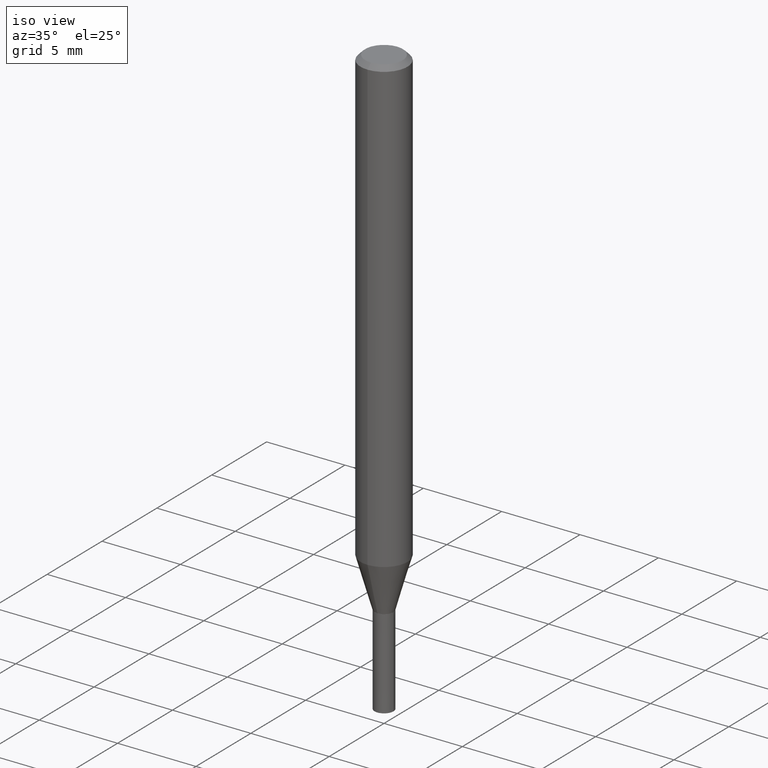
[diagram: clean part render]
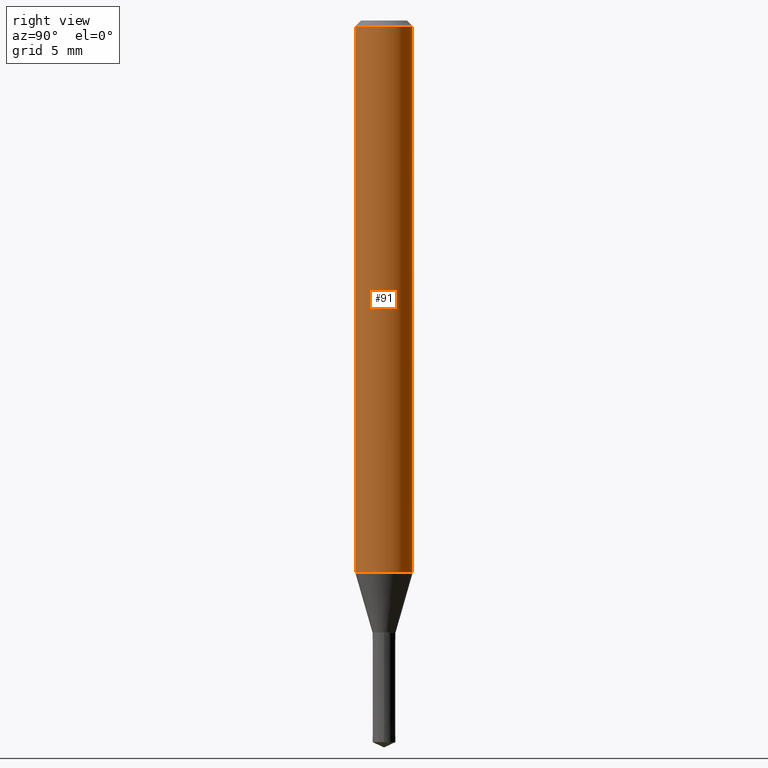
[diagram: tour spotlight — one face highlighted and labeled with its STEP entity id]
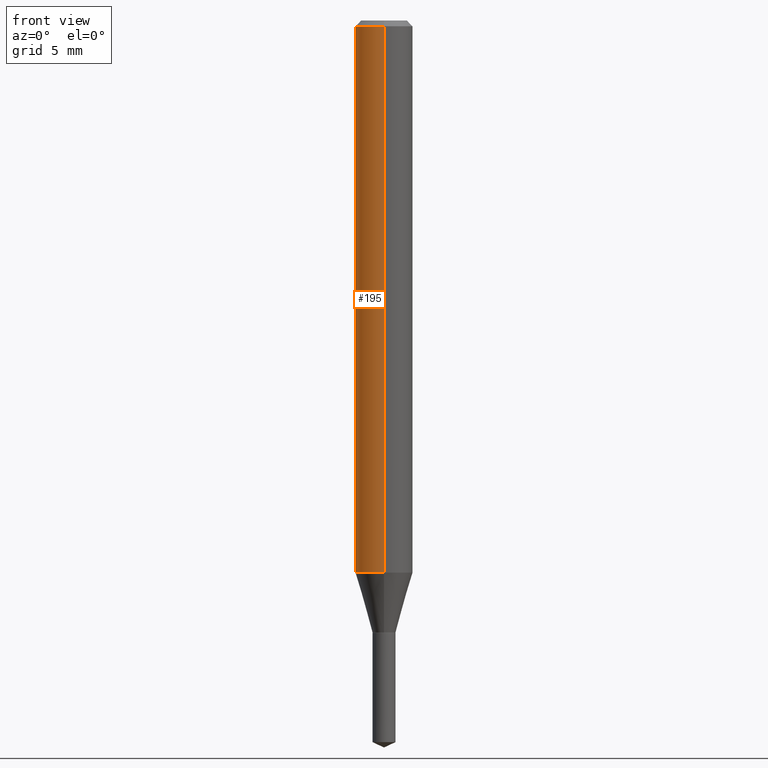
[diagram: tour spotlight — one face highlighted and labeled with its STEP entity id]
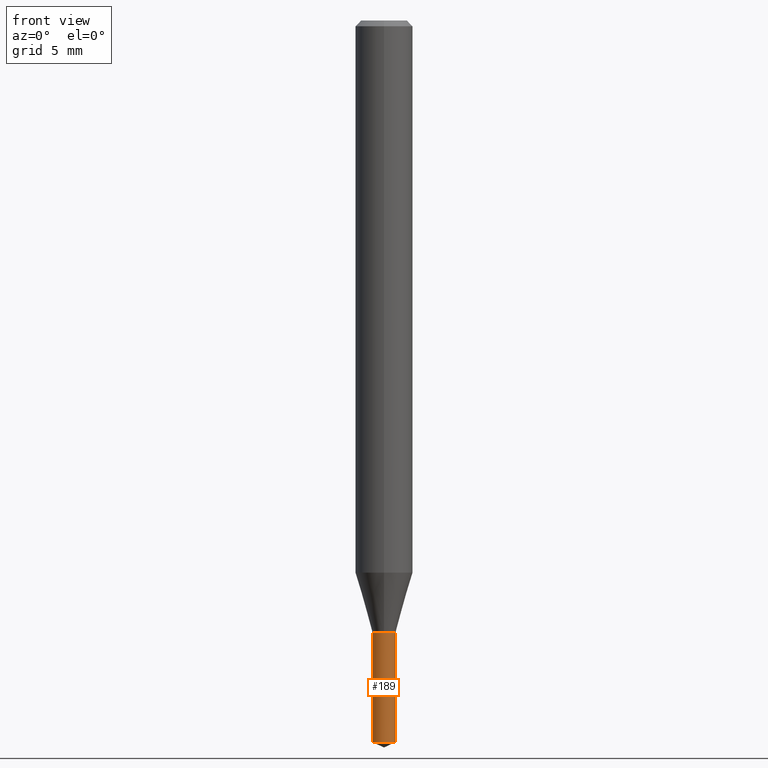
[diagram: tour spotlight — one face highlighted and labeled with its STEP entity id]
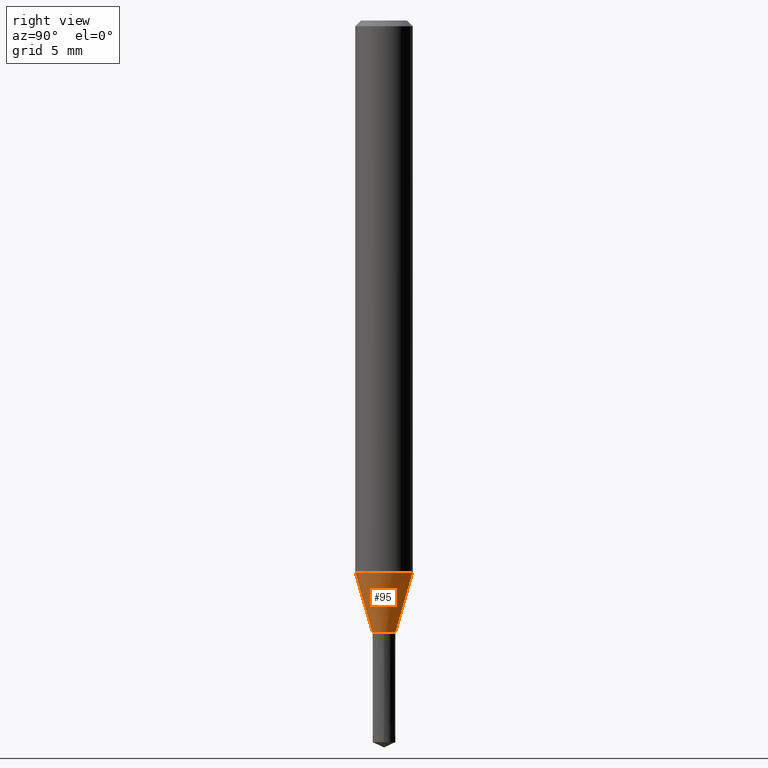
[diagram: tour spotlight — one face highlighted and labeled with its STEP entity id]
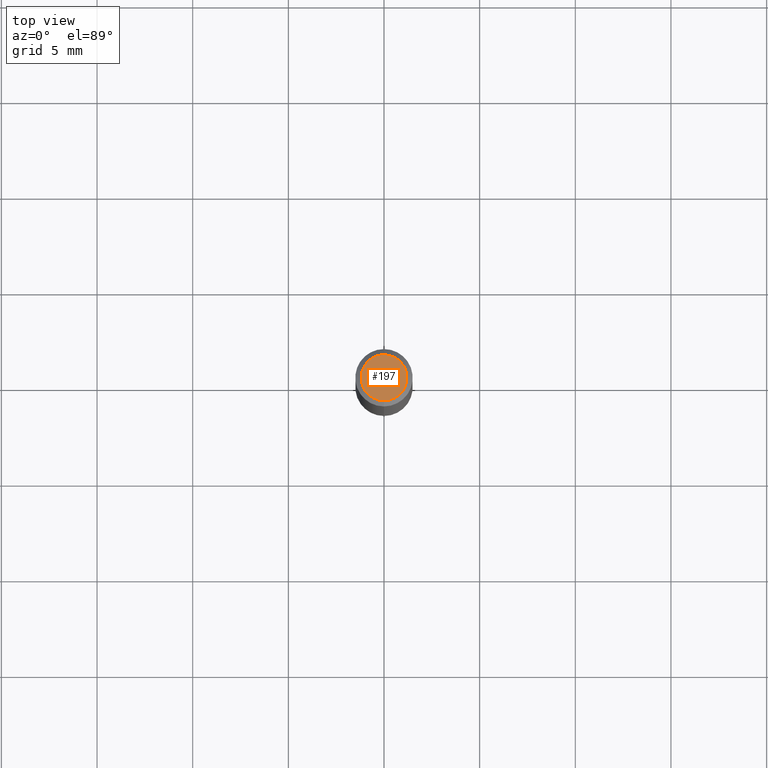
[diagram: tour spotlight — one face highlighted and labeled with its STEP entity id]
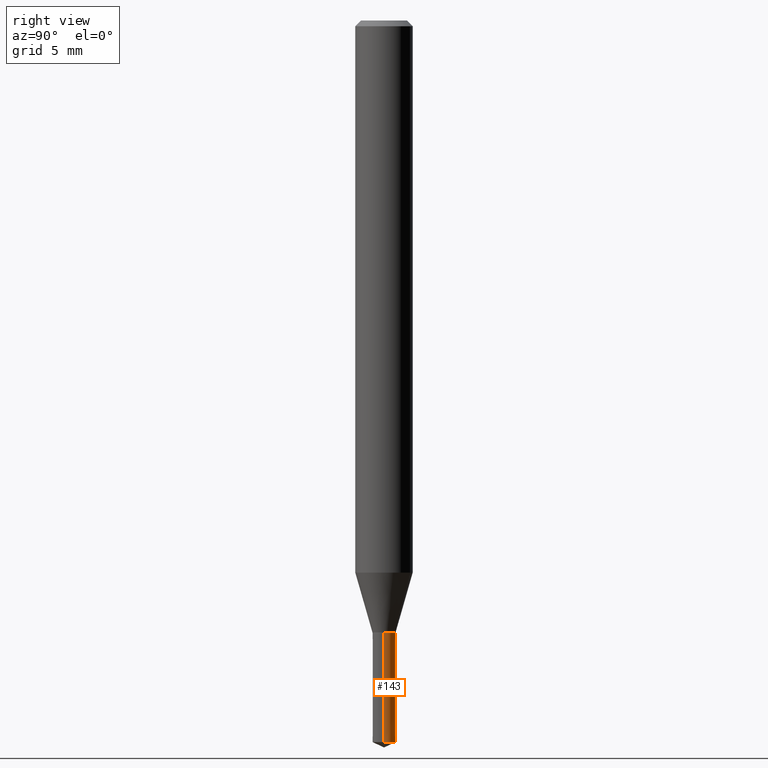
[diagram: tour spotlight — one face highlighted and labeled with its STEP entity id]
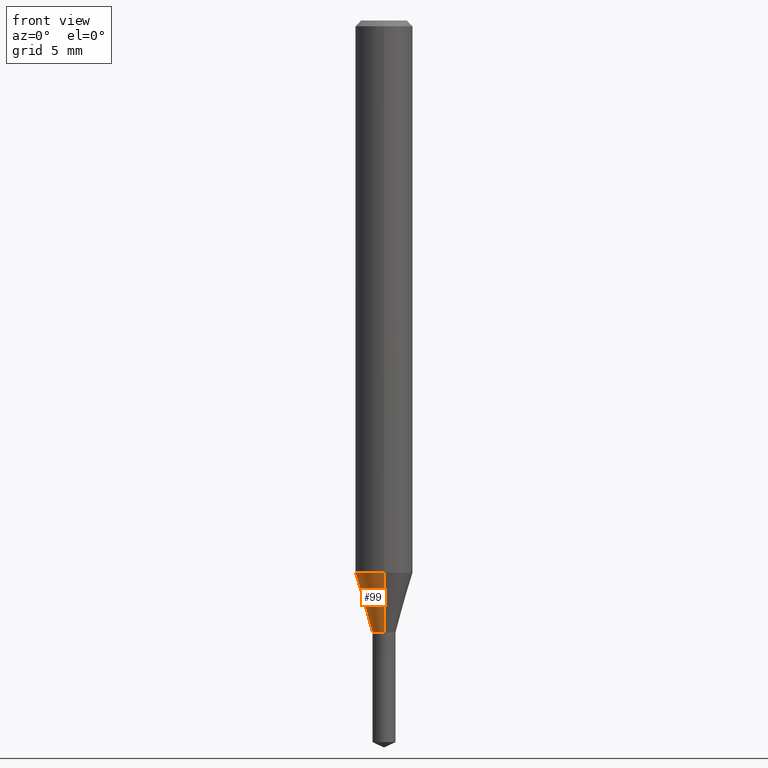
[diagram: tour spotlight — one face highlighted and labeled with its STEP entity id]
A machine part: a face-by-face anatomy tour. The part has 15 B-rep faces; the first image is the clean iso view, then the 7 largest visible faces are spotlighted one at a time (largest first), each with its STEP entity span.

Face 1 — right view, entity #91. In plain terms, the highlighted cylindrical surface (edge-blend (fillet) strip) has radius 1.5 mm, axis along (-0, -0, 1).
Definition (entity closure, byte-faithful):
#91=ADVANCED_FACE('',(#226),#227,.T.);
#103=EDGE_CURVE('',#187,#193,#242,.T.);
#111=EDGE_CURVE('',#173,#199,#251,.T.);
#131=EDGE_CURVE('',#193,#199,#273,.T.);
#151=EDGE_CURVE('',#173,#187,#297,.T.);
#173=VERTEX_POINT('',#320);
#187=VERTEX_POINT('',#334);
#193=VERTEX_POINT('',#341);
#199=VERTEX_POINT('',#349);
#226=FACE_OUTER_BOUND('',#368,.T.);
#227=CYLINDRICAL_SURFACE('',#369,1.5);
#242=CIRCLE('',#388,1.5);
#251=CIRCLE('',#402,1.5);
#273=LINE('',#426,#427);
#297=LINE('',#457,#458);
#320=CARTESIAN_POINT('',(0.0,1.5,-0.300000000000001));
#334=CARTESIAN_POINT('',(0.0,1.5,-28.861));
#341=CARTESIAN_POINT('',(1.83690953073357E-016,-1.5,-28.861));
#349=CARTESIAN_POINT('',(1.83690953073357E-016,-1.5,-0.300000000000001));
#368=EDGE_LOOP('',(#536,#537,#538,#539));
#369=AXIS2_PLACEMENT_3D('',#540,#541,#542);
#388=AXIS2_PLACEMENT_3D('',#570,#571,#572);
#402=AXIS2_PLACEMENT_3D('',#583,#584,#585);
#426=CARTESIAN_POINT('',(1.83690953073357E-016,-1.5,-14.5805));
#427=VECTOR('',#605,1.0);
#457=CARTESIAN_POINT('',(-1.83690953073357E-016,1.5,-14.5805));
#458=VECTOR('',#643,1.0);
#536=ORIENTED_EDGE('',*,*,#151,.F.);
#537=ORIENTED_EDGE('',*,*,#111,.T.);
#538=ORIENTED_EDGE('',*,*,#131,.F.);
#539=ORIENTED_EDGE('',*,*,#103,.F.);
#540=CARTESIAN_POINT('',(0.0,0.0,-14.5805));
#541=DIRECTION('',(-0.0,-0.0,1.0));
#542=DIRECTION('',(0.0,1.0,0.0));
#570=CARTESIAN_POINT('',(0.0,0.0,-28.861));
#571=DIRECTION('',(0.0,0.0,-1.0));
#572=DIRECTION('',(0.0,1.0,0.0));
#583=CARTESIAN_POINT('',(0.0,0.0,-0.300000000000001));
#584=DIRECTION('',(0.0,0.0,-1.0));
#585=DIRECTION('',(0.0,1.0,0.0));
#605=DIRECTION('',(-0.0,-0.0,1.0));
#643=DIRECTION('',(0.0,0.0,-1.0));

Face 2 — front view, entity #195. In plain terms, the highlighted cylindrical surface (edge-blend (fillet) strip) has radius 1.5 mm, axis along (-0, -0, 1).
Definition (entity closure, byte-faithful):
#101=EDGE_CURVE('',#193,#187,#240,.T.);
#131=EDGE_CURVE('',#193,#199,#273,.T.);
#151=EDGE_CURVE('',#173,#187,#297,.T.);
#173=VERTEX_POINT('',#320);
#181=EDGE_CURVE('',#199,#173,#328,.T.);
#187=VERTEX_POINT('',#334);
#193=VERTEX_POINT('',#341);
#195=ADVANCED_FACE('',(#343),#344,.T.);
#199=VERTEX_POINT('',#349);
#240=CIRCLE('',#385,1.5);
#273=LINE('',#426,#427);
#297=LINE('',#457,#458);
#320=CARTESIAN_POINT('',(0.0,1.5,-0.300000000000001));
#328=CIRCLE('',#501,1.5);
#334=CARTESIAN_POINT('',(0.0,1.5,-28.861));
#341=CARTESIAN_POINT('',(1.83690953073357E-016,-1.5,-28.861));
#343=FACE_OUTER_BOUND('',#518,.T.);
#344=CYLINDRICAL_SURFACE('',#519,1.5);
#349=CARTESIAN_POINT('',(1.83690953073357E-016,-1.5,-0.300000000000001));
#385=AXIS2_PLACEMENT_3D('',#567,#568,#569);
#426=CARTESIAN_POINT('',(1.83690953073357E-016,-1.5,-14.5805));
#427=VECTOR('',#605,1.0);
#457=CARTESIAN_POINT('',(-1.83690953073357E-016,1.5,-14.5805));
#458=VECTOR('',#643,1.0);
#501=AXIS2_PLACEMENT_3D('',#669,#670,#671);
#518=EDGE_LOOP('',(#686,#687,#688,#689));
#519=AXIS2_PLACEMENT_3D('',#690,#691,#692);
#567=CARTESIAN_POINT('',(0.0,0.0,-28.861));
#568=DIRECTION('',(0.0,0.0,-1.0));
#569=DIRECTION('',(0.0,1.0,0.0));
#605=DIRECTION('',(-0.0,-0.0,1.0));
#643=DIRECTION('',(0.0,0.0,-1.0));
#669=CARTESIAN_POINT('',(0.0,0.0,-0.300000000000001));
#670=DIRECTION('',(0.0,0.0,-1.0));
#671=DIRECTION('',(0.0,1.0,0.0));
#686=ORIENTED_EDGE('',*,*,#151,.T.);
#687=ORIENTED_EDGE('',*,*,#101,.F.);
#688=ORIENTED_EDGE('',*,*,#131,.T.);
#689=ORIENTED_EDGE('',*,*,#181,.T.);
#690=CARTESIAN_POINT('',(0.0,0.0,-14.5805));
#691=DIRECTION('',(-0.0,-0.0,1.0));
#692=DIRECTION('',(0.0,1.0,0.0));

Face 3 — front view, entity #189. In plain terms, the highlighted conical surface has half-angle 0.01 deg.
Definition (entity closure, byte-faithful):
#93=EDGE_CURVE('',#117,#113,#229,.T.);
#105=EDGE_CURVE('',#115,#119,#244,.T.);
#113=VERTEX_POINT('',#253);
#115=VERTEX_POINT('',#255);
#117=VERTEX_POINT('',#257);
#119=VERTEX_POINT('',#259);
#153=EDGE_CURVE('',#119,#117,#299,.T.);
#189=ADVANCED_FACE('',(#336),#337,.T.);
#201=EDGE_CURVE('',#115,#113,#351,.T.);
#229=LINE('',#372,#373);
#244=LINE('',#391,#392);
#253=CARTESIAN_POINT('',(-0.6,0.0,-37.72021541));
#255=CARTESIAN_POINT('',(0.6,7.34763812293426E-017,-37.72021541));
#257=CARTESIAN_POINT('',(-0.601,0.0,-32.0));
#259=CARTESIAN_POINT('',(0.601,7.35988418647249E-017,-32.0));
#299=CIRCLE('',#461,0.601);
#336=FACE_OUTER_BOUND('',#509,.T.);
#337=CONICAL_SURFACE('',#510,0.6005,0.000174818589535044);
#351=CIRCLE('',#527,0.6);
#372=CARTESIAN_POINT('',(-0.6005,-7.35376115470338E-017,-34.860107705));
#373=VECTOR('',#543,1.0);
#391=CARTESIAN_POINT('',(0.6005,7.35376115470338E-017,-34.860107705));
#392=VECTOR('',#573,1.0);
#461=AXIS2_PLACEMENT_3D('',#644,#645,#646);
#509=EDGE_LOOP('',(#677,#678,#679,#680));
#510=AXIS2_PLACEMENT_3D('',#681,#682,#683);
#527=AXIS2_PLACEMENT_3D('',#699,#700,#701);
#543=DIRECTION('',(0.000174818588644589,2.14083954420425E-020,-0.99999998471923));
#573=DIRECTION('',(0.000174818588644589,2.14083954420425E-020,0.99999998471923));
#644=CARTESIAN_POINT('',(0.0,0.0,-32.0));
#645=DIRECTION('',(0.0,0.0,-1.0));
#646=DIRECTION('',(-1.0,0.0,0.0));
#677=ORIENTED_EDGE('',*,*,#93,.T.);
#678=ORIENTED_EDGE('',*,*,#201,.F.);
#679=ORIENTED_EDGE('',*,*,#105,.T.);
#680=ORIENTED_EDGE('',*,*,#153,.T.);
#681=CARTESIAN_POINT('',(0.0,0.0,-34.860107705));
#682=DIRECTION('',(-0.0,-0.0,1.0));
#683=DIRECTION('',(-1.0,0.0,0.0));
#699=CARTESIAN_POINT('',(0.0,0.0,-37.72021541));
#700=DIRECTION('',(0.0,0.0,-1.0));
#701=DIRECTION('',(-1.0,0.0,0.0));

Face 4 — right view, entity #95. In plain terms, the highlighted conical surface has half-angle 16.003 deg.
Definition (entity closure, byte-faithful):
#95=ADVANCED_FACE('',(#231),#232,.T.);
#103=EDGE_CURVE('',#187,#193,#242,.T.);
#137=VERTEX_POINT('',#280);
#147=EDGE_CURVE('',#187,#137,#293,.T.);
#157=VERTEX_POINT('',#303);
#171=EDGE_CURVE('',#157,#193,#318,.T.);
#175=EDGE_CURVE('',#137,#157,#322,.T.);
#187=VERTEX_POINT('',#334);
#193=VERTEX_POINT('',#341);
#231=FACE_OUTER_BOUND('',#375,.T.);
#232=CONICAL_SURFACE('',#376,1.05,0.279298190793163);
#242=CIRCLE('',#388,1.5);
#280=CARTESIAN_POINT('',(0.0,0.6,-31.9991339745962));
#293=LINE('',#450,#451);
#303=CARTESIAN_POINT('',(7.34763812293426E-017,-0.6,-31.9991339745962));
#318=LINE('',#485,#486);
#322=CIRCLE('',#491,0.6);
#334=CARTESIAN_POINT('',(0.0,1.5,-28.861));
#341=CARTESIAN_POINT('',(1.83690953073357E-016,-1.5,-28.861));
#375=EDGE_LOOP('',(#545,#546,#547,#548));
#376=AXIS2_PLACEMENT_3D('',#549,#550,#551);
#388=AXIS2_PLACEMENT_3D('',#570,#571,#572);
#450=CARTESIAN_POINT('',(-1.2858366715135E-016,1.05,-30.4300669872981));
#451=VECTOR('',#639,1.0);
#485=CARTESIAN_POINT('',(1.2858366715135E-016,-1.05,-30.4300669872981));
#486=VECTOR('',#661,1.0);
#491=AXIS2_PLACEMENT_3D('',#662,#663,#664);
#545=ORIENTED_EDGE('',*,*,#147,.F.);
#546=ORIENTED_EDGE('',*,*,#103,.T.);
#547=ORIENTED_EDGE('',*,*,#171,.F.);
#548=ORIENTED_EDGE('',*,*,#175,.F.);
#549=CARTESIAN_POINT('',(0.0,0.0,-30.4300669872981));
#550=DIRECTION('',(-0.0,-0.0,1.0));
#551=DIRECTION('',(0.0,1.0,0.0));
#570=CARTESIAN_POINT('',(0.0,0.0,-28.861));
#571=DIRECTION('',(0.0,0.0,-1.0));
#572=DIRECTION('',(0.0,1.0,0.0));
#639=DIRECTION('',(3.3760083037116E-017,-0.275681103007022,-0.961249150556104));
#661=DIRECTION('',(3.3760083037116E-017,-0.275681103007022,0.961249150556104));
#662=CARTESIAN_POINT('',(0.0,0.0,-31.9991339745962));
#663=DIRECTION('',(0.0,0.0,-1.0));
#664=DIRECTION('',(0.0,1.0,0.0));

Face 5 — top view, entity #197. In plain terms, the highlighted planar face has unit normal (-0, 0, 1).
Definition (entity closure, byte-faithful):
#121=EDGE_CURVE('',#139,#155,#261,.T.);
#139=VERTEX_POINT('',#282);
#149=EDGE_CURVE('',#155,#139,#295,.T.);
#155=VERTEX_POINT('',#301);
#197=ADVANCED_FACE('',(#346),#347,.T.);
#261=CIRCLE('',#413,1.2);
#282=CARTESIAN_POINT('',(1.46952762458685E-016,-1.2,0.0));
#295=CIRCLE('',#454,1.2);
#301=CARTESIAN_POINT('',(0.0,1.2,0.0));
#346=FACE_OUTER_BOUND('',#521,.T.);
#347=PLANE('',#522);
#413=AXIS2_PLACEMENT_3D('',#586,#587,#588);
#454=AXIS2_PLACEMENT_3D('',#640,#641,#642);
#521=EDGE_LOOP('',(#694,#695));
#522=AXIS2_PLACEMENT_3D('',#696,#697,#698);
#586=CARTESIAN_POINT('',(0.0,0.0,0.0));
#587=DIRECTION('',(0.0,0.0,-1.0));
#588=DIRECTION('',(0.0,1.0,0.0));
#640=CARTESIAN_POINT('',(0.0,0.0,0.0));
#641=DIRECTION('',(0.0,0.0,-1.0));
#642=DIRECTION('',(0.0,1.0,0.0));
#694=ORIENTED_EDGE('',*,*,#149,.F.);
#695=ORIENTED_EDGE('',*,*,#121,.F.);
#696=CARTESIAN_POINT('',(0.0,0.6,0.0));
#697=DIRECTION('',(-0.0,0.0,1.0));
#698=DIRECTION('',(0.0,-1.0,0.0));

Face 6 — right view, entity #143. In plain terms, the highlighted conical surface has half-angle 0.01 deg.
Definition (entity closure, byte-faithful):
#93=EDGE_CURVE('',#117,#113,#229,.T.);
#105=EDGE_CURVE('',#115,#119,#244,.T.);
#113=VERTEX_POINT('',#253);
#115=VERTEX_POINT('',#255);
#117=VERTEX_POINT('',#257);
#119=VERTEX_POINT('',#259);
#123=EDGE_CURVE('',#113,#115,#263,.T.);
#143=ADVANCED_FACE('',(#287),#288,.T.);
#169=EDGE_CURVE('',#117,#119,#316,.T.);
#229=LINE('',#372,#373);
#244=LINE('',#391,#392);
#253=CARTESIAN_POINT('',(-0.6,0.0,-37.72021541));
#255=CARTESIAN_POINT('',(0.6,7.34763812293426E-017,-37.72021541));
#257=CARTESIAN_POINT('',(-0.601,0.0,-32.0));
#259=CARTESIAN_POINT('',(0.601,7.35988418647249E-017,-32.0));
#263=CIRCLE('',#416,0.6);
#287=FACE_OUTER_BOUND('',#443,.T.);
#288=CONICAL_SURFACE('',#444,0.6005,0.000174818589535044);
#316=CIRCLE('',#482,0.601);
#372=CARTESIAN_POINT('',(-0.6005,-7.35376115470338E-017,-34.860107705));
#373=VECTOR('',#543,1.0);
#391=CARTESIAN_POINT('',(0.6005,7.35376115470338E-017,-34.860107705));
#392=VECTOR('',#573,1.0);
#416=AXIS2_PLACEMENT_3D('',#589,#590,#591);
#443=EDGE_LOOP('',(#624,#625,#626,#627));
#444=AXIS2_PLACEMENT_3D('',#628,#629,#630);
#482=AXIS2_PLACEMENT_3D('',#658,#659,#660);
#543=DIRECTION('',(0.000174818588644589,2.14083954420425E-020,-0.99999998471923));
#573=DIRECTION('',(0.000174818588644589,2.14083954420425E-020,0.99999998471923));
#589=CARTESIAN_POINT('',(0.0,0.0,-37.72021541));
#590=DIRECTION('',(0.0,0.0,-1.0));
#591=DIRECTION('',(-1.0,0.0,0.0));
#624=ORIENTED_EDGE('',*,*,#93,.F.);
#625=ORIENTED_EDGE('',*,*,#169,.T.);
#626=ORIENTED_EDGE('',*,*,#105,.F.);
#627=ORIENTED_EDGE('',*,*,#123,.F.);
#628=CARTESIAN_POINT('',(0.0,0.0,-34.860107705));
#629=DIRECTION('',(-0.0,-0.0,1.0));
#630=DIRECTION('',(-1.0,0.0,0.0));
#658=CARTESIAN_POINT('',(0.0,0.0,-32.0));
#659=DIRECTION('',(0.0,0.0,-1.0));
#660=DIRECTION('',(-1.0,0.0,0.0));

Face 7 — front view, entity #99. In plain terms, the highlighted conical surface has half-angle 16.003 deg.
Definition (entity closure, byte-faithful):
#99=ADVANCED_FACE('',(#237),#238,.T.);
#101=EDGE_CURVE('',#193,#187,#240,.T.);
#137=VERTEX_POINT('',#280);
#147=EDGE_CURVE('',#187,#137,#293,.T.);
#157=VERTEX_POINT('',#303);
#171=EDGE_CURVE('',#157,#193,#318,.T.);
#177=EDGE_CURVE('',#157,#137,#324,.T.);
#187=VERTEX_POINT('',#334);
#193=VERTEX_POINT('',#341);
#237=FACE_OUTER_BOUND('',#381,.T.);
#238=CONICAL_SURFACE('',#382,1.05,0.279298190793163);
#240=CIRCLE('',#385,1.5);
#280=CARTESIAN_POINT('',(0.0,0.6,-31.9991339745962));
#293=LINE('',#450,#451);
#303=CARTESIAN_POINT('',(7.34763812293426E-017,-0.6,-31.9991339745962));
#318=LINE('',#485,#486);
#324=CIRCLE('',#494,0.6);
#334=CARTESIAN_POINT('',(0.0,1.5,-28.861));
#341=CARTESIAN_POINT('',(1.83690953073357E-016,-1.5,-28.861));
#381=EDGE_LOOP('',(#560,#561,#562,#563));
#382=AXIS2_PLACEMENT_3D('',#564,#565,#566);
#385=AXIS2_PLACEMENT_3D('',#567,#568,#569);
#450=CARTESIAN_POINT('',(-1.2858366715135E-016,1.05,-30.4300669872981));
#451=VECTOR('',#639,1.0);
#485=CARTESIAN_POINT('',(1.2858366715135E-016,-1.05,-30.4300669872981));
#486=VECTOR('',#661,1.0);
#494=AXIS2_PLACEMENT_3D('',#665,#666,#667);
#560=ORIENTED_EDGE('',*,*,#147,.T.);
#561=ORIENTED_EDGE('',*,*,#177,.F.);
#562=ORIENTED_EDGE('',*,*,#171,.T.);
#563=ORIENTED_EDGE('',*,*,#101,.T.);
#564=CARTESIAN_POINT('',(0.0,0.0,-30.4300669872981));
#565=DIRECTION('',(-0.0,-0.0,1.0));
#566=DIRECTION('',(0.0,1.0,0.0));
#567=CARTESIAN_POINT('',(0.0,0.0,-28.861));
#568=DIRECTION('',(0.0,0.0,-1.0));
#569=DIRECTION('',(0.0,1.0,0.0));
#639=DIRECTION('',(3.3760083037116E-017,-0.275681103007022,-0.961249150556104));
#661=DIRECTION('',(3.3760083037116E-017,-0.275681103007022,0.961249150556104));
#665=CARTESIAN_POINT('',(0.0,0.0,-31.9991339745962));
#666=DIRECTION('',(0.0,0.0,-1.0));
#667=DIRECTION('',(0.0,1.0,0.0));